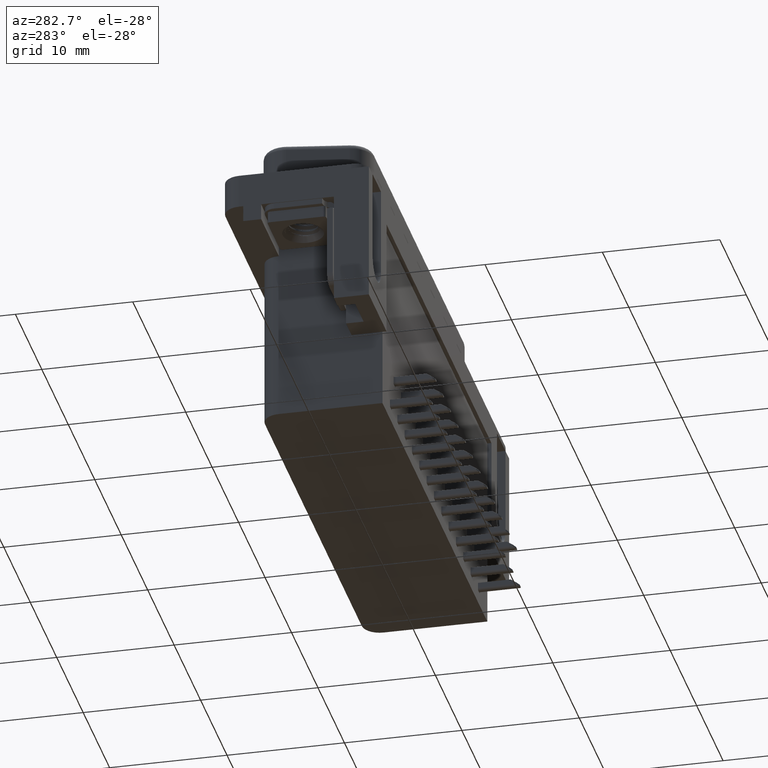
[diagram: clean part render]
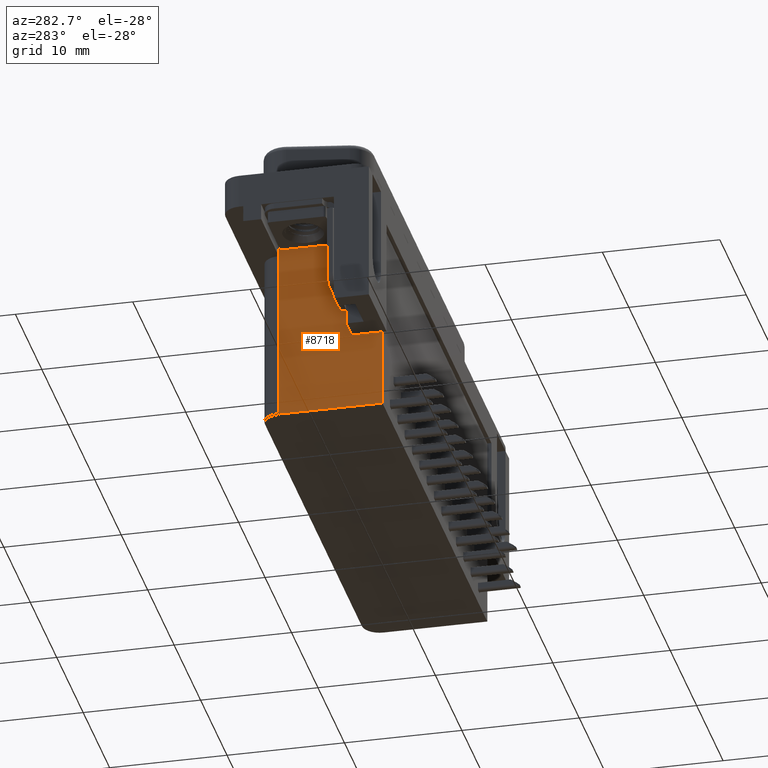
[diagram: same view with one face highlighted and labeled with its STEP entity id]
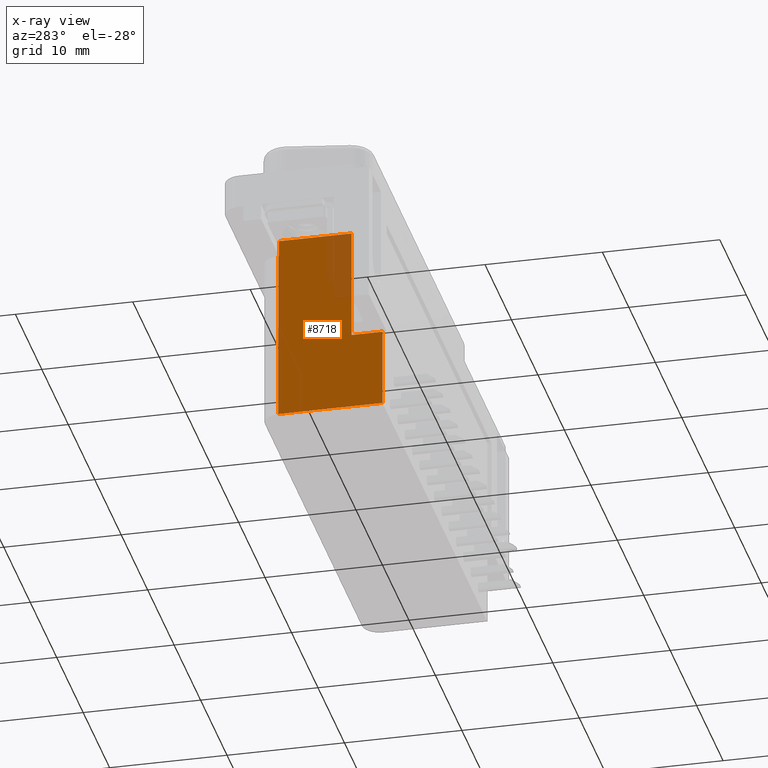
[diagram: x-ray of the same camera — body ghosted, the highlighted face saturated]
A machine part, auxiliary view. The second image highlights one B-rep face of the part: STEP entity #8718.
The next image is the same camera in x-ray: the body ghosted, the highlighted face saturated — about 10% of this face is hidden behind the body in this view.
In plain terms, the highlighted planar face has unit normal (1, -0, 0).
Its self-contained STEP definition (entity closure, byte-faithful):
#352 = EDGE_CURVE ( 'NONE', #5383, #10379, #15591, .T. ) ;
#638 = EDGE_CURVE ( 'NONE', #10379, #6741, #12052, .T. ) ;
#742 = CARTESIAN_POINT ( 'NONE',  ( 3.699999999999996200, -2.579773658004095200E-016, -3.899999999999999900 ) ) ;
#1034 = VECTOR ( 'NONE', #19115, 1000.000000000000000 ) ;
#1050 = EDGE_CURVE ( 'NONE', #6741, #8217, #16635, .T. ) ;
#1293 = LINE ( 'NONE', #4056, #19193 ) ;
#1496 = CARTESIAN_POINT ( 'NONE',  ( 3.699999999999994400, 2.894999999999990200, -3.899999999999999900 ) ) ;
#1580 = LINE ( 'NONE', #18882, #10936 ) ;
#1615 = CARTESIAN_POINT ( 'NONE',  ( 3.699999999999995300, 2.894999999999990200, -3.899999999999999900 ) ) ;
#1821 = DIRECTION ( 'NONE',  ( 0.0000000000000000000, 0.0000000000000000000, -1.000000000000000000 ) ) ;
#1992 = DIRECTION ( 'NONE',  ( 6.472848790958235800E-017, 1.000000000000000000, -0.0000000000000000000 ) ) ;
#2073 = CARTESIAN_POINT ( 'NONE',  ( 3.699999999999995700, -6.294999999999999900, -12.05000000000000100 ) ) ;
#2152 = LINE ( 'NONE', #2073, #5705 ) ;
#2669 = VECTOR ( 'NONE', #6100, 1000.000000000000000 ) ;
#2702 = VECTOR ( 'NONE', #10226, 1000.000000000000000 ) ;
#3197 = CARTESIAN_POINT ( 'NONE',  ( 3.699999999999995700, -3.295000000000000400, -2.500000000000000000 ) ) ;
#3752 = CARTESIAN_POINT ( 'NONE',  ( 3.699999999999995700, -3.295000000000000800, -12.05000000000000100 ) ) ;
#4056 = CARTESIAN_POINT ( 'NONE',  ( 3.699999999999996200, 2.924999999999990500, -18.75999999999999800 ) ) ;
#4342 = EDGE_CURVE ( 'NONE', #16417, #8217, #1293, .T. ) ;
#4680 = CARTESIAN_POINT ( 'NONE',  ( 3.699999999999995700, -3.295000000000000400, -18.75999999999999800 ) ) ;
#4727 = EDGE_CURVE ( 'NONE', #10799, #16417, #7369, .T. ) ;
#4758 = EDGE_CURVE ( 'NONE', #14261, #10799, #1580, .T. ) ;
#4791 = EDGE_CURVE ( 'NONE', #14261, #9424, #2152, .T. ) ;
#4830 = EDGE_CURVE ( 'NONE', #9424, #5383, #10411, .T. ) ;
#5383 = VERTEX_POINT ( 'NONE', #3197 ) ;
#5412 = CARTESIAN_POINT ( 'NONE',  ( 3.699999999999996200, 2.924999999999990500, -18.75999999999999800 ) ) ;
#5705 = VECTOR ( 'NONE', #1992, 1000.000000000000000 ) ;
#6100 = DIRECTION ( 'NONE',  ( 6.972361237848913400E-017, 1.000000000000000000, 0.0000000000000000000 ) ) ;
#6333 = CARTESIAN_POINT ( 'NONE',  ( 3.699999999999993500, 2.894999999999990200, -2.500000000000000000 ) ) ;
#6741 = VERTEX_POINT ( 'NONE', #1496 ) ;
#7369 = LINE ( 'NONE', #21981, #2669 ) ;
#7434 = AXIS2_PLACEMENT_3D ( 'NONE', #4680, #8207, #20218 ) ;
#8207 = DIRECTION ( 'NONE',  ( 1.000000000000000000, -6.972361237848913400E-017, 0.0000000000000000000 ) ) ;
#8217 = VERTEX_POINT ( 'NONE', #13866 ) ;
#8718 = ADVANCED_FACE ( 'NONE', ( #10486 ), #18505, .F. ) ;
#9424 = VERTEX_POINT ( 'NONE', #3752 ) ;
#9530 = ORIENTED_EDGE ( 'NONE', *, *, #4727, .F. ) ;
#9975 = ORIENTED_EDGE ( 'NONE', *, *, #1050, .T. ) ;
#10226 = DIRECTION ( 'NONE',  ( 6.972361237848913400E-017, 1.000000000000000000, 0.0000000000000000000 ) ) ;
#10379 = VERTEX_POINT ( 'NONE', #6333 ) ;
#10411 = LINE ( 'NONE', #19109, #1034 ) ;
#10486 = FACE_OUTER_BOUND ( 'NONE', #18254, .T. ) ;
#10589 = CARTESIAN_POINT ( 'NONE',  ( 3.699999999999995700, -3.295000000000000400, -2.500000000000000000 ) ) ;
#10799 = VERTEX_POINT ( 'NONE', #17955 ) ;
#10936 = VECTOR ( 'NONE', #14077, 1000.000000000000000 ) ;
#11011 = VECTOR ( 'NONE', #17486, 1000.000000000000000 ) ;
#12052 = LINE ( 'NONE', #1615, #19521 ) ;
#13866 = CARTESIAN_POINT ( 'NONE',  ( 3.699999999999996200, 2.924999999999990500, -3.900000000000000800 ) ) ;
#13989 = ORIENTED_EDGE ( 'NONE', *, *, #4758, .F. ) ;
#14019 = ORIENTED_EDGE ( 'NONE', *, *, #4791, .T. ) ;
#14077 = DIRECTION ( 'NONE',  ( 3.105113620483545400E-016, 0.0000000000000000000, -1.000000000000000000 ) ) ;
#14261 = VERTEX_POINT ( 'NONE', #20647 ) ;
#14396 = ORIENTED_EDGE ( 'NONE', *, *, #352, .T. ) ;
#14919 = DIRECTION ( 'NONE',  ( -0.0000000000000000000, -0.0000000000000000000, 1.000000000000000000 ) ) ;
#15591 = LINE ( 'NONE', #10589, #11011 ) ;
#16039 = ORIENTED_EDGE ( 'NONE', *, *, #4342, .F. ) ;
#16417 = VERTEX_POINT ( 'NONE', #5412 ) ;
#16635 = LINE ( 'NONE', #742, #2702 ) ;
#16765 = ORIENTED_EDGE ( 'NONE', *, *, #4830, .T. ) ;
#17486 = DIRECTION ( 'NONE',  ( 6.972361237848913400E-017, 1.000000000000000000, 0.0000000000000000000 ) ) ;
#17955 = CARTESIAN_POINT ( 'NONE',  ( 3.699999999999995700, -5.925000000000001600, -18.75999999999999800 ) ) ;
#18254 = EDGE_LOOP ( 'NONE', ( #14396, #21975, #9975, #16039, #9530, #13989, #14019, #16765 ) ) ;
#18505 = PLANE ( 'NONE',  #7434 ) ;
#18882 = CARTESIAN_POINT ( 'NONE',  ( 3.699999999999997500, -5.925000000000001600, -2.000000000000000000 ) ) ;
#19109 = CARTESIAN_POINT ( 'NONE',  ( 3.699999999999995700, -3.295000000000000400, -18.75999999999999800 ) ) ;
#19115 = DIRECTION ( 'NONE',  ( -0.0000000000000000000, -0.0000000000000000000, 1.000000000000000000 ) ) ;
#19193 = VECTOR ( 'NONE', #14919, 1000.000000000000000 ) ;
#19521 = VECTOR ( 'NONE', #1821, 1000.000000000000000 ) ;
#20218 = DIRECTION ( 'NONE',  ( 6.972361237848913400E-017, 1.000000000000000000, 0.0000000000000000000 ) ) ;
#20647 = CARTESIAN_POINT ( 'NONE',  ( 3.699999999999995700, -5.925000000000001600, -12.05000000000000100 ) ) ;
#21975 = ORIENTED_EDGE ( 'NONE', *, *, #638, .T. ) ;
#21981 = CARTESIAN_POINT ( 'NONE',  ( 3.699999999999995700, -3.295000000000000400, -18.75999999999999800 ) ) ;